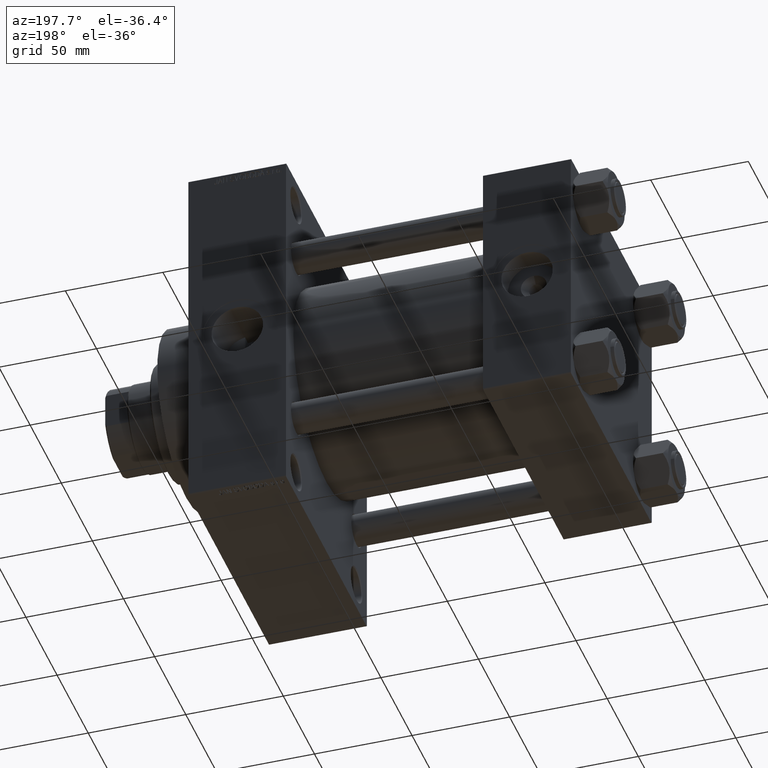
[diagram: clean part render]
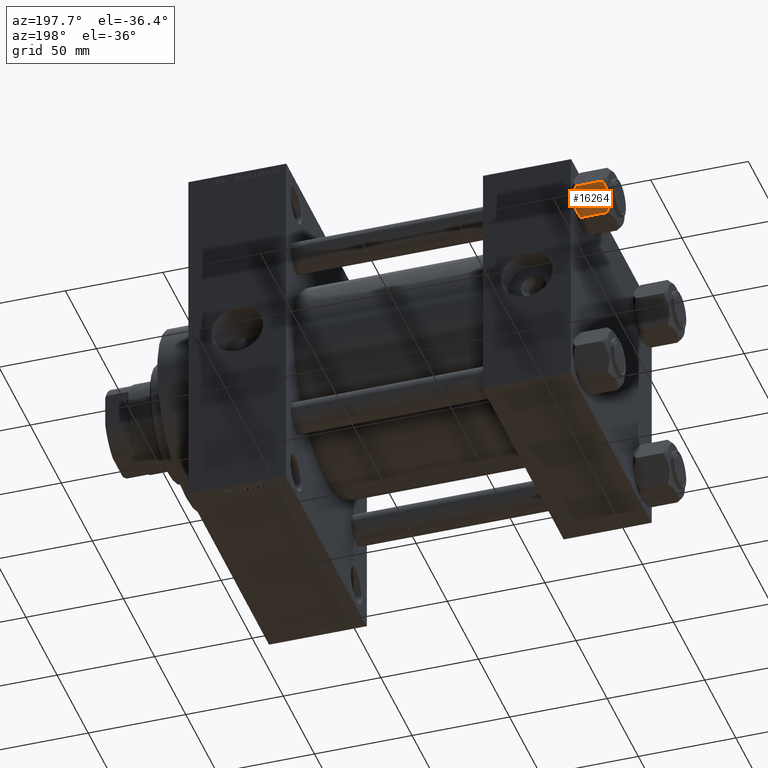
[diagram: same view with one face highlighted and labeled with its STEP entity id]
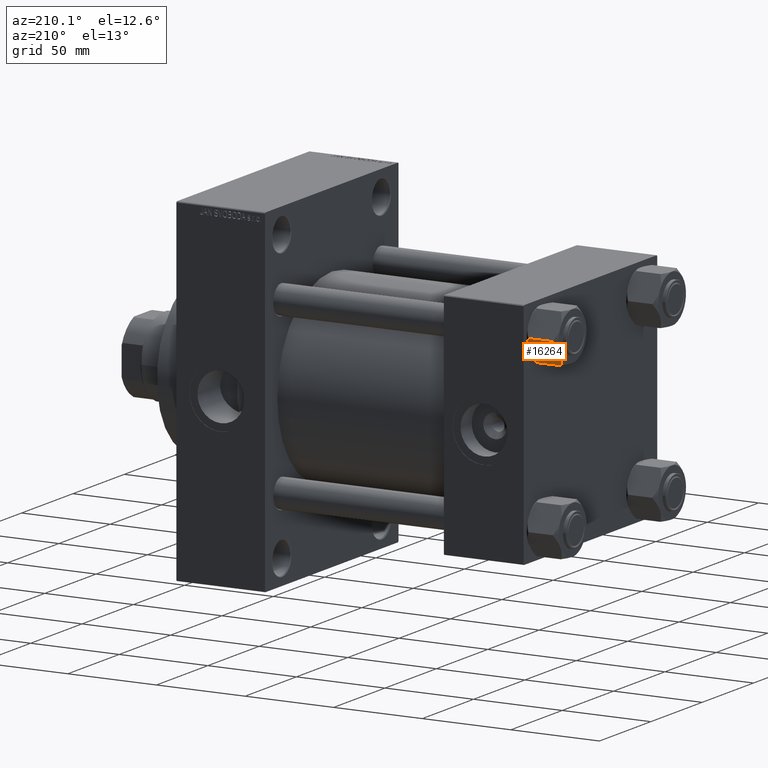
[diagram: same view with one face highlighted and labeled with its STEP entity id]
A machine part, auxiliary view. The second image highlights one B-rep face of the part: STEP entity #16264.
A second angle (auxiliary view) of the same face is appended — the face is thin or edge-on in the first view.
In plain terms, the highlighted planar face has unit normal (-0, -0.866, 0.5).
Its self-contained STEP definition (entity closure, byte-faithful):
#1003 = CARTESIAN_POINT ( 'NONE',  ( 7.810000000000001386, 13.52731680711293905, -16.00000000000000000 ) ) ;
#1795 = CARTESIAN_POINT ( 'NONE',  ( 15.52647173767732980, 0.1619957022865022300, -2.000000000000000000 ) ) ;
#2850 = CARTESIAN_POINT ( 'NONE',  ( 9.114548888011785976, 11.26777185211903998, -17.08577173959729478 ) ) ;
#3707 = CARTESIAN_POINT ( 'NONE',  ( 7.903528262322677023, 13.36532110482643176, -16.00000000000000000 ) ) ;
#4061 = B_SPLINE_CURVE_WITH_KNOTS ( 'NONE', 3,
 ( #24616, #10378, #6759, #39108, #9909, #35717, #13312, #32325 ),
 .UNSPECIFIED., .F., .F.,
 ( 4, 2, 2, 4 ),
 ( 4.472842641970240738E-07, 0.003945636373369317863, 0.005918230917921878283, 0.007890825462474437835 ),
 .UNSPECIFIED. ) ;
#4268 = VECTOR ( 'NONE', #36753, 999.9999999999998863 ) ;
#4282 = CARTESIAN_POINT ( 'NONE',  ( 15.62000000000000455, -1.379485931020374819E-15, -1.999999999999998224 ) ) ;
#4489 = CARTESIAN_POINT ( 'NONE',  ( 14.92394044919338114, 1.205610507090631334, -16.56553707812499354 ) ) ;
#4699 = CARTESIAN_POINT ( 'NONE',  ( 7.810000000000001386, 13.52731680711293905, -18.00000000000000000 ) ) ;
#5424 = DIRECTION ( 'NONE',  ( -0.000000000000000000, -0.000000000000000000, 1.000000000000000000 ) ) ;
#6350 = DIRECTION ( 'NONE',  ( -0.000000000000000000, -0.000000000000000000, 1.000000000000000000 ) ) ;
#6759 = CARTESIAN_POINT ( 'NONE',  ( 14.31545111198821552, 2.259544954993893295, -0.9142282604026940040 ) ) ;
#7096 = ORIENTED_EDGE ( 'NONE', *, *, #43943, .F. ) ;
#7605 = PLANE ( 'NONE',  #13179 ) ;
#9909 = CARTESIAN_POINT ( 'NONE',  ( 13.04337073483128506, 4.462852799541082938, -0.2430846701012968347 ) ) ;
#10378 = CARTESIAN_POINT ( 'NONE',  ( 14.92760668674625002, 1.199260397376449072, -1.411989271640066601 ) ) ;
#10830 = VERTEX_POINT ( 'NONE', #4282 ) ;
#10844 = VECTOR ( 'NONE', #38132, 999.9999999999998863 ) ;
#11187 = EDGE_CURVE ( 'NONE', #38112, #26249, #12547, .T. ) ;
#11230 = CARTESIAN_POINT ( 'NONE',  ( 11.71500000000000519, 6.763658403556469523, 0.000000000000000000 ) ) ;
#11463 = DIRECTION ( 'NONE',  ( 0.4999999999999998890, -0.8660254037844385966, 0.000000000000000000 ) ) ;
#11963 = CARTESIAN_POINT ( 'NONE',  ( 13.02784502466562699, 4.489744118371587156, -17.80281335400755083 ) ) ;
#12313 = ORIENTED_EDGE ( 'NONE', *, *, #20409, .F. ) ;
#12547 = B_SPLINE_CURVE_WITH_KNOTS ( 'NONE', 3,
 ( #11230, #28821, #43786, #25932, #43541, #21841, #43306, #47151 ),
 .UNSPECIFIED., .F., .F.,
 ( 4, 2, 2, 4 ),
 ( 0.007890825462474437835, 0.01181022244528555538, 0.01376992093669111156, 0.01572961942809666946 ),
 .UNSPECIFIED. ) ;
#13179 = AXIS2_PLACEMENT_3D ( 'NONE', #40887, #44494, #11463 ) ;
#13312 = CARTESIAN_POINT ( 'NONE',  ( 12.04818928091285812, 6.186557640478062225, 2.165016213181991667E-15 ) ) ;
#13394 = VERTEX_POINT ( 'NONE', #22548 ) ;
#14876 = EDGE_CURVE ( 'NONE', #47059, #38112, #4061, .T. ) ;
#14951 = VECTOR ( 'NONE', #5424, 1000.000000000000000 ) ;
#15554 = DIRECTION ( 'NONE',  ( 0.4999999999999999445, -0.8660254037844387076, 0.000000000000000000 ) ) ;
#15591 = CARTESIAN_POINT ( 'NONE',  ( 11.71500000000000519, 6.763658403556469523, -18.00000000000000000 ) ) ;
#15775 = CARTESIAN_POINT ( 'NONE',  ( 7.810000000000001386, 13.52731680711293905, -1.999999999999998224 ) ) ;
#16264 = ADVANCED_FACE ( 'NONE', ( #29534 ), #7605, .F. ) ;
#16559 = EDGE_CURVE ( 'NONE', #47231, #10830, #20378, .T. ) ;
#17008 = CARTESIAN_POINT ( 'NONE',  ( 7.810000000000000497, 13.52731680711293905, -16.00000000000000000 ) ) ;
#17323 = EDGE_CURVE ( 'NONE', #40977, #43749, #33318, .T. ) ;
#17493 = ORIENTED_EDGE ( 'NONE', *, *, #16559, .F. ) ;
#17743 = ORIENTED_EDGE ( 'NONE', *, *, #22975, .T. ) ;
#18960 = CARTESIAN_POINT ( 'NONE',  ( 12.37702203890362895, 5.617002596445055396, -18.00000000000001066 ) ) ;
#19172 = CARTESIAN_POINT ( 'NONE',  ( 7.810000000000001386, 13.52731680711293905, -16.00000000000000000 ) ) ;
#19373 = VECTOR ( 'NONE', #6350, 1000.000000000000000 ) ;
#19450 = CARTESIAN_POINT ( 'NONE',  ( 14.30591678195076355, 2.276058899034896221, -17.05261278537718184 ) ) ;
#20239 = EDGE_CURVE ( 'NONE', #43749, #39143, #42858, .T. ) ;
#20378 = LINE ( 'NONE', #27606, #19373 ) ;
#20409 = EDGE_CURVE ( 'NONE', #29056, #40977, #29929, .T. ) ;
#21841 = CARTESIAN_POINT ( 'NONE',  ( 8.506059550806622127, 12.32170630002230283, -1.434462921875002683 ) ) ;
#22548 = CARTESIAN_POINT ( 'NONE',  ( 7.810000000000000497, 13.52731680711293905, -1.999999999999998224 ) ) ;
#22810 = CARTESIAN_POINT ( 'NONE',  ( 13.99051971937273997, 2.822342635978008385, -17.26828031537188934 ) ) ;
#22975 = EDGE_CURVE ( 'NONE', #29056, #13394, #23745, .T. ) ;
#23745 = LINE ( 'NONE', #4699, #14951 ) ;
#23903 = VECTOR ( 'NONE', #15554, 999.9999999999998863 ) ;
#24616 = CARTESIAN_POINT ( 'NONE',  ( 15.52647173767732980, 0.1619957022865022300, -2.000000000000000000 ) ) ;
#24797 = CARTESIAN_POINT ( 'NONE',  ( 8.502393313253755025, 12.32805640973648309, -16.58801072835992585 ) ) ;
#25022 = CARTESIAN_POINT ( 'NONE',  ( 7.810000000000001386, 13.52731680711293905, -1.999999999999998224 ) ) ;
#25027 = CARTESIAN_POINT ( 'NONE',  ( 11.38181071908714870, 7.340759166634869715, -18.00000000000000355 ) ) ;
#25932 = CARTESIAN_POINT ( 'NONE',  ( 9.439480280627263298, 10.70497417113492489, -0.7317196846281137645 ) ) ;
#26249 = VERTEX_POINT ( 'NONE', #42477 ) ;
#27606 = CARTESIAN_POINT ( 'NONE',  ( 15.62000000000000455, -1.379485931020374819E-15, -18.00000000000000000 ) ) ;
#28821 = CARTESIAN_POINT ( 'NONE',  ( 11.05297796109638320, 7.910314210667883650, 2.165016213181991667E-15 ) ) ;
#29056 = VERTEX_POINT ( 'NONE', #17008 ) ;
#29276 = EDGE_CURVE ( 'NONE', #26249, #13394, #37472, .T. ) ;
#29297 = ORIENTED_EDGE ( 'NONE', *, *, #11187, .F. ) ;
#29534 = FACE_OUTER_BOUND ( 'NONE', #39635, .T. ) ;
#29929 = LINE ( 'NONE', #1003, #10844 ) ;
#31609 = EDGE_CURVE ( 'NONE', #10830, #47059, #43118, .T. ) ;
#32325 = CARTESIAN_POINT ( 'NONE',  ( 11.71500000000000519, 6.763658403556469523, 0.000000000000000000 ) ) ;
#32511 = CARTESIAN_POINT ( 'NONE',  ( 11.04378428799595468, 7.926238119586002995, -17.94910618364699317 ) ) ;
#32890 = ORIENTED_EDGE ( 'NONE', *, *, #20239, .F. ) ;
#33318 = B_SPLINE_CURVE_WITH_KNOTS ( 'NONE', 3,
 ( #35888, #24797, #2850, #46970, #43364, #32511, #25027, #39747 ),
 .UNSPECIFIED., .F., .F.,
 ( 4, 2, 2, 4 ),
 ( 4.472842641813524820E-07, 0.003945636373369301383, 0.005918230917921860935, 0.007890825462474420487 ),
 .UNSPECIFIED. ) ;
#33478 = ORIENTED_EDGE ( 'NONE', *, *, #17323, .F. ) ;
#33844 = ORIENTED_EDGE ( 'NONE', *, *, #29276, .F. ) ;
#35163 = VECTOR ( 'NONE', #35883, 999.9999999999998863 ) ;
#35717 = CARTESIAN_POINT ( 'NONE',  ( 12.38621571200405924, 5.601078687526928945, -0.05089381635301384876 ) ) ;
#35883 = DIRECTION ( 'NONE',  ( -0.4999999999999999445, 0.8660254037844387076, 0.000000000000000000 ) ) ;
#35888 = CARTESIAN_POINT ( 'NONE',  ( 7.903528262322677023, 13.36532110482643176, -16.00000000000000000 ) ) ;
#36385 = CARTESIAN_POINT ( 'NONE',  ( 15.52647173767732980, 0.1619957022865022300, -16.00000000000000000 ) ) ;
#36753 = DIRECTION ( 'NONE',  ( -0.4999999999999999445, 0.8660254037844387076, 0.000000000000000000 ) ) ;
#36812 = CARTESIAN_POINT ( 'NONE',  ( 15.52647173767732980, 0.1619957022865022300, -16.00000000000000000 ) ) ;
#37472 = LINE ( 'NONE', #15775, #4268 ) ;
#37492 = LINE ( 'NONE', #19172, #23903 ) ;
#38112 = VERTEX_POINT ( 'NONE', #38598 ) ;
#38132 = DIRECTION ( 'NONE',  ( 0.4999999999999999445, -0.8660254037844387076, 0.000000000000000000 ) ) ;
#38598 = CARTESIAN_POINT ( 'NONE',  ( 11.71500000000000519, 6.763658403556469523, 0.000000000000000000 ) ) ;
#39108 = CARTESIAN_POINT ( 'NONE',  ( 13.36540581434588049, 3.905071680002324630, -0.3836066851120584764 ) ) ;
#39143 = VERTEX_POINT ( 'NONE', #36385 ) ;
#39498 = ORIENTED_EDGE ( 'NONE', *, *, #14876, .F. ) ;
#39613 = CARTESIAN_POINT ( 'NONE',  ( 15.62000000000000455, -1.379485931020374819E-15, -16.00000000000000000 ) ) ;
#39635 = EDGE_LOOP ( 'NONE', ( #12313, #17743, #33844, #29297, #39498, #46876, #17493, #7096, #32890, #33478 ) ) ;
#39747 = CARTESIAN_POINT ( 'NONE',  ( 11.71500000000000519, 6.763658403556469523, -18.00000000000000000 ) ) ;
#40887 = CARTESIAN_POINT ( 'NONE',  ( 7.810000000000001386, 13.52731680711293905, -18.00000000000000000 ) ) ;
#40977 = VERTEX_POINT ( 'NONE', #3707 ) ;
#42130 = CARTESIAN_POINT ( 'NONE',  ( 11.71500000000000519, 6.763658403556469523, -18.00000000000000000 ) ) ;
#42477 = CARTESIAN_POINT ( 'NONE',  ( 7.903528262322677023, 13.36532110482643176, -2.000000000000000000 ) ) ;
#42858 = B_SPLINE_CURVE_WITH_KNOTS ( 'NONE', 3,
 ( #15591, #18960, #11963, #22810, #19450, #4489, #44519, #36812 ),
 .UNSPECIFIED., .F., .F.,
 ( 4, 2, 2, 4 ),
 ( 0.007890825462474420487, 0.01181022244528553804, 0.01376992093669109421, 0.01572961942809665212 ),
 .UNSPECIFIED. ) ;
#43118 = LINE ( 'NONE', #25022, #35163 ) ;
#43306 = CARTESIAN_POINT ( 'NONE',  ( 8.202637790192646605, 12.84724820552771085, -1.706311779141445717 ) ) ;
#43364 = CARTESIAN_POINT ( 'NONE',  ( 10.38662926516872353, 9.064464007571851667, -17.75691532989870680 ) ) ;
#43541 = CARTESIAN_POINT ( 'NONE',  ( 9.124083218049239719, 11.25125790807803483, -0.9473872146228128344 ) ) ;
#43749 = VERTEX_POINT ( 'NONE', #42130 ) ;
#43786 = CARTESIAN_POINT ( 'NONE',  ( 10.40215497533437450, 9.037572688741345672, -0.1971866459924547788 ) ) ;
#43943 = EDGE_CURVE ( 'NONE', #39143, #47231, #37492, .T. ) ;
#44494 = DIRECTION ( 'NONE',  ( -0.8660254037844387076, -0.4999999999999999445, 0.000000000000000000 ) ) ;
#44519 = CARTESIAN_POINT ( 'NONE',  ( 15.22736220980735844, 0.6800686015852226429, -16.29368822085855228 ) ) ;
#46876 = ORIENTED_EDGE ( 'NONE', *, *, #31609, .F. ) ;
#46970 = CARTESIAN_POINT ( 'NONE',  ( 10.06459418565412278, 9.622245127110613083, -17.61639331488794014 ) ) ;
#47059 = VERTEX_POINT ( 'NONE', #1795 ) ;
#47151 = CARTESIAN_POINT ( 'NONE',  ( 7.903528262322677023, 13.36532110482643176, -2.000000000000000000 ) ) ;
#47231 = VERTEX_POINT ( 'NONE', #39613 ) ;